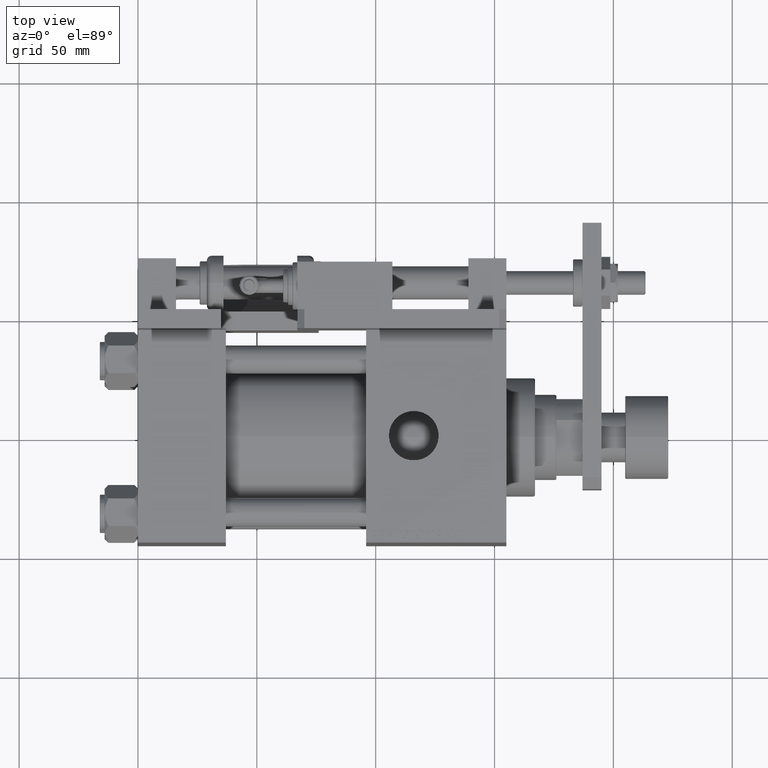
[diagram: clean part render]
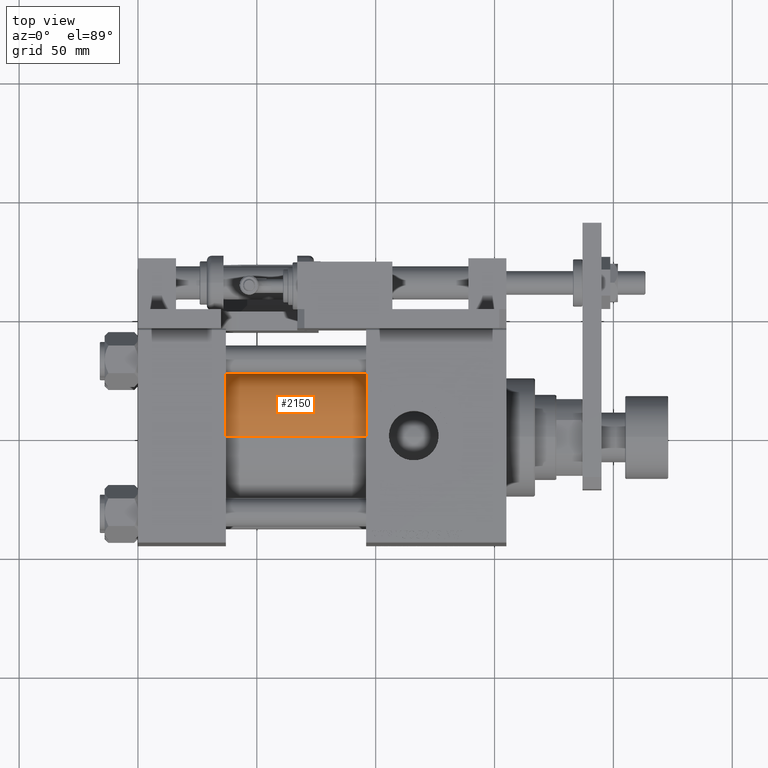
[diagram: same view with one face highlighted and labeled with its STEP entity id]
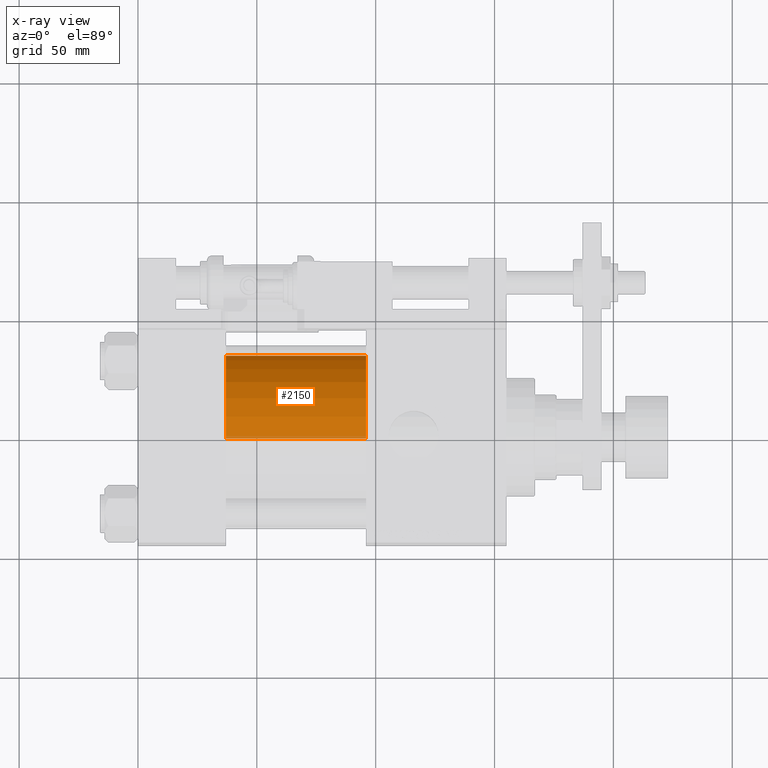
[diagram: x-ray of the same camera — body ghosted, the highlighted face saturated]
A machine part, top view. The second image highlights one B-rep face of the part: STEP entity #2150.
The next image is the same camera in x-ray: the body ghosted, the highlighted face saturated — about 4% of this face is hidden behind the body in this view.
In plain terms, the highlighted cylindrical surface (partial cylindrical patch) has radius 34.5 mm, axis along (-1, -0, -0).
Its self-contained STEP definition (entity closure, byte-faithful):
#592 = EDGE_CURVE ( 'NONE', #6822, #20480, #48043, .T. ) ;
#2150 = ADVANCED_FACE ( 'NONE', ( #8695 ), #9571, .T. ) ;
#4286 = CARTESIAN_POINT ( 'NONE',  ( 96.00000000000000000, -2.602085213965210642E-15, 0.000000000000000000 ) ) ;
#5160 = DIRECTION ( 'NONE',  ( 0.000000000000000000, 0.000000000000000000, 1.000000000000000000 ) ) ;
#6822 = VERTEX_POINT ( 'NONE', #35217 ) ;
#7239 = VERTEX_POINT ( 'NONE', #10819 ) ;
#8017 = DIRECTION ( 'NONE',  ( -1.000000000000000000, -0.000000000000000000, -0.000000000000000000 ) ) ;
#8695 = FACE_OUTER_BOUND ( 'NONE', #37141, .T. ) ;
#9571 = CYLINDRICAL_SURFACE ( 'NONE', #10679, 34.50000000000000000 ) ;
#10679 = AXIS2_PLACEMENT_3D ( 'NONE', #4286, #49399, #5160 ) ;
#10819 = CARTESIAN_POINT ( 'NONE',  ( 96.00000000000000000, 1.622946243093158675E-15, -34.50000000000000000 ) ) ;
#12423 = CARTESIAN_POINT ( 'NONE',  ( 96.00000000000000000, 1.622946243093158675E-15, -34.50000000000000000 ) ) ;
#13140 = DIRECTION ( 'NONE',  ( -1.000000000000000000, -0.000000000000000000, -0.000000000000000000 ) ) ;
#14076 = CARTESIAN_POINT ( 'NONE',  ( 96.00000000000000000, -2.602085213965210642E-15, 34.50000000000000000 ) ) ;
#15345 = DIRECTION ( 'NONE',  ( 1.000000000000000000, -0.000000000000000000, 0.000000000000000000 ) ) ;
#19150 = CARTESIAN_POINT ( 'NONE',  ( 37.00000000000000000, -2.602085213965210642E-15, 0.000000000000000000 ) ) ;
#20480 = VERTEX_POINT ( 'NONE', #41075 ) ;
#26005 = EDGE_CURVE ( 'NONE', #7239, #43878, #41484, .T. ) ;
#26570 = CARTESIAN_POINT ( 'NONE',  ( 96.00000000000000000, -2.602085213965210642E-15, 0.000000000000000000 ) ) ;
#27504 = ORIENTED_EDGE ( 'NONE', *, *, #48356, .T. ) ;
#30972 = DIRECTION ( 'NONE',  ( 0.000000000000000000, 0.000000000000000000, -1.000000000000000000 ) ) ;
#31260 = DIRECTION ( 'NONE',  ( 1.000000000000000000, 0.000000000000000000, 0.000000000000000000 ) ) ;
#35217 = CARTESIAN_POINT ( 'NONE',  ( 37.00000000000000000, 1.622946243093158675E-15, -34.50000000000000000 ) ) ;
#37009 = DIRECTION ( 'NONE',  ( 0.000000000000000000, 0.000000000000000000, 1.000000000000000000 ) ) ;
#37141 = EDGE_LOOP ( 'NONE', ( #45242, #27504, #39051, #53477 ) ) ;
#39051 = ORIENTED_EDGE ( 'NONE', *, *, #592, .T. ) ;
#41075 = CARTESIAN_POINT ( 'NONE',  ( 37.00000000000000000, -2.602085213965210642E-15, 34.50000000000000000 ) ) ;
#41484 = CIRCLE ( 'NONE', #47078, 34.50000000000000000 ) ;
#42279 = VECTOR ( 'NONE', #8017, 1000.000000000000000 ) ;
#43878 = VERTEX_POINT ( 'NONE', #14076 ) ;
#45039 = EDGE_CURVE ( 'NONE', #43878, #20480, #53245, .T. ) ;
#45242 = ORIENTED_EDGE ( 'NONE', *, *, #26005, .F. ) ;
#47078 = AXIS2_PLACEMENT_3D ( 'NONE', #26570, #31260, #30972 ) ;
#48043 = CIRCLE ( 'NONE', #57349, 34.50000000000000000 ) ;
#48356 = EDGE_CURVE ( 'NONE', #7239, #6822, #48426, .T. ) ;
#48426 = LINE ( 'NONE', #12423, #42279 ) ;
#49399 = DIRECTION ( 'NONE',  ( -1.000000000000000000, -0.000000000000000000, -0.000000000000000000 ) ) ;
#53245 = LINE ( 'NONE', #57925, #55177 ) ;
#53477 = ORIENTED_EDGE ( 'NONE', *, *, #45039, .F. ) ;
#55177 = VECTOR ( 'NONE', #13140, 1000.000000000000000 ) ;
#57349 = AXIS2_PLACEMENT_3D ( 'NONE', #19150, #15345, #37009 ) ;
#57925 = CARTESIAN_POINT ( 'NONE',  ( 96.00000000000000000, -2.602085213965210642E-15, 34.50000000000000000 ) ) ;